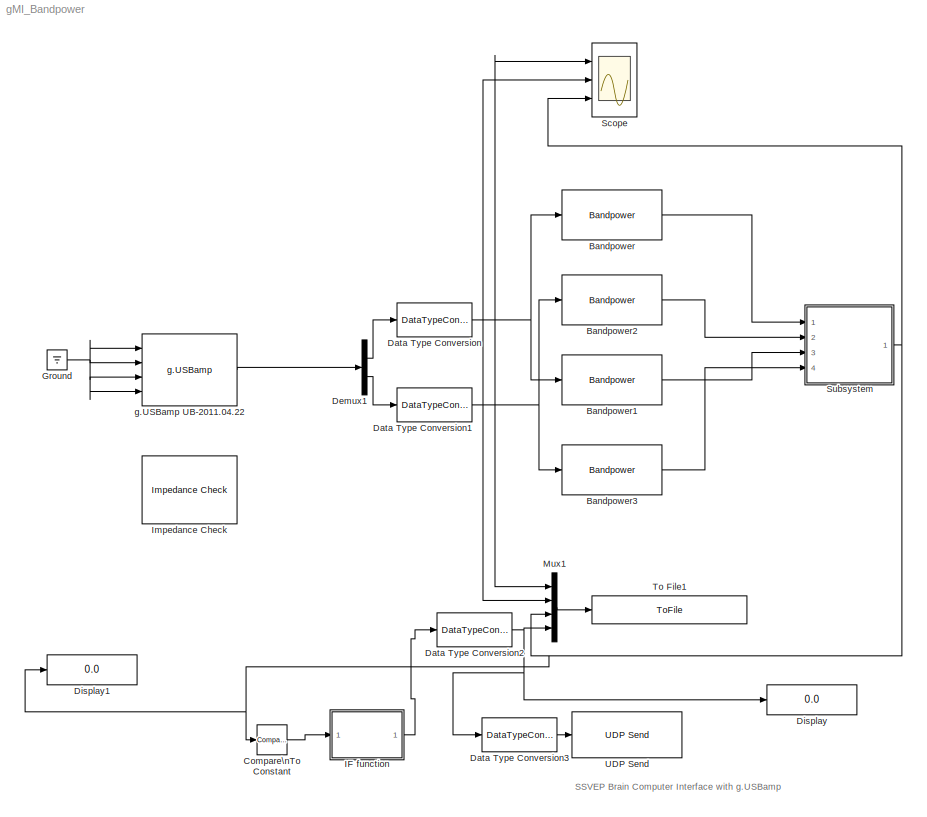
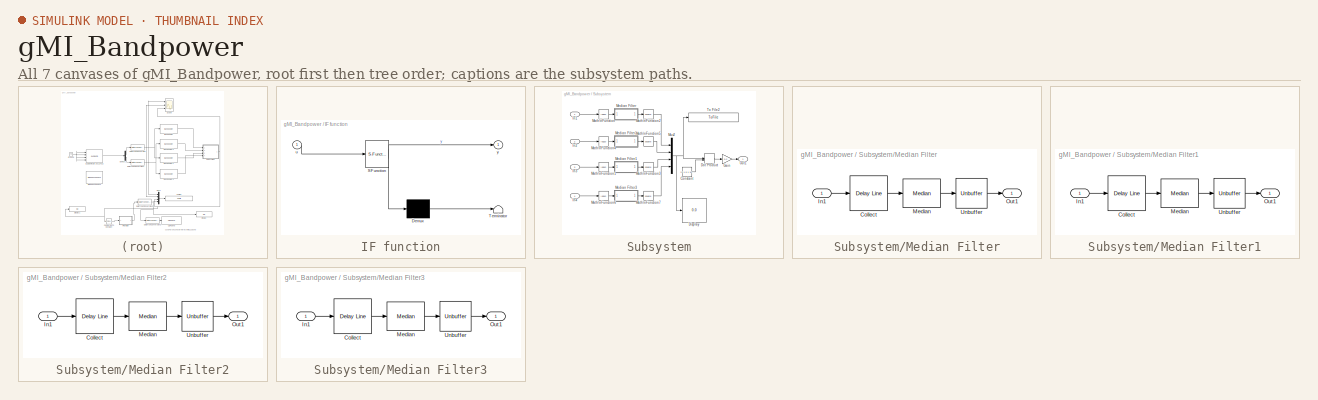
[diagram: thumbnail index - all 7 canvases of the model, root first then tree order]
MODEL gMI_Bandpower
KIND model
BLOCK [Reference] Bandpower  REF=gRTanalyze/Bandpower
  LowerFreq = 8
  Order = 5
  Ports = [1, 1]
  SID = 90
  SourceBlock = gRTanalyze/Bandpower
  SourceType = Parameter Extraction: Bandpower
  UpperFreq = 12
  WindowLength = 128
BLOCK [Reference] Bandpower1  REF=gRTanalyze/Bandpower
  LowerFreq = 12
  Order = 5
  Ports = [1, 1]
  SID = 91
  SourceBlock = gRTanalyze/Bandpower
  SourceType = Parameter Extraction: Bandpower
  UpperFreq = 30
  WindowLength = 128
BLOCK [Reference] Bandpower2  REF=gRTanalyze/Bandpower
  LowerFreq = 8
  Order = 5
  Ports = [1, 1]
  SID = 114
  SourceBlock = gRTanalyze/Bandpower
  SourceType = Parameter Extraction: Bandpower
  UpperFreq = 12
  WindowLength = 128
BLOCK [Reference] Bandpower3  REF=gRTanalyze/Bandpower
  LowerFreq = 12
  Order = 5
  Ports = [1, 1]
  SID = 115
  SourceBlock = gRTanalyze/Bandpower
  SourceType = Parameter Extraction: Bandpower
  UpperFreq = 30
  WindowLength = 128
BLOCK [Reference] Compare\nTo Constant  REF=simulink/Logic and Bit\nOperations/Compare\nTo Constant
  OutDataTypeStr = boolean
  Ports = [1, 1]
  SID = 102
  SourceBlock = simulink/Logic and Bit\nOperations/Compare\nTo Constant
  SourceType = Compare To Constant
  ZeroCross = on
  const = 100
  relop = >=
BLOCK [DataTypeConversion] Data Type Conversion
  OutDataTypeStr = double
  RndMeth = Floor
  SID = 88
  SaturateOnIntegerOverflow = off
BLOCK [DataTypeConversion] Data Type Conversion1
  OutDataTypeStr = double
  RndMeth = Floor
  SID = 89
  SaturateOnIntegerOverflow = off
BLOCK [DataTypeConversion] Data Type Conversion2
  OutDataTypeStr = double
  RndMeth = Floor
  SID = 104
  SaturateOnIntegerOverflow = off
BLOCK [DataTypeConversion] Data Type Conversion3
  OutDataTypeStr = uint8
  RndMeth = Floor
  SID = 143
  SaturateOnIntegerOverflow = off
BLOCK [Demux] Demux1
  DisplayOption = bar
  Outputs = 2
  Ports = [1, 2]
  SID = 86
BLOCK [Display] Display
  Decimation = 1
  Ports = [1]
  SID = 148
BLOCK [Display] Display1
  Decimation = 1
  Ports = [1]
  SID = 149
BLOCK [Ground] Ground
  SID = 84
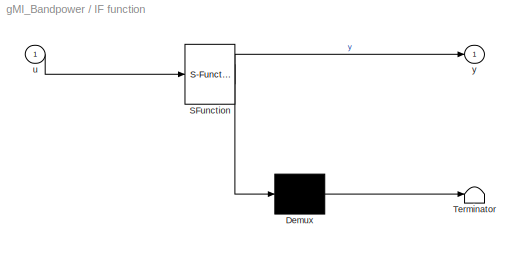
BLOCK [SubSystem] IF function
  ErrorFcn = Stateflow.Translate.translate
  PermitHierarchicalResolution = ExplicitOnly
  Ports = [1, 1]
  RequestExecContextInheritance = off
  SFBlockType = MATLAB Function
  SID = 147
  TreatAsAtomicUnit = on
  Variant = off
BLOCK [Demux] IF function/ Demux 
  Outputs = 1
  Ports = [1, 1]
  SID = 147::17
BLOCK [S-Function] IF function/ SFunction 
  EnableBusSupport = on
  FunctionName = sf_sfun
  PortCounts = [1 2]
  Ports = [1, 2]
  SFunctionDeploymentMode = off
  SID = 147::16
  Tag = Stateflow S-Function gMI_Bandpower 2
BLOCK [Terminator] IF function/ Terminator 
  SID = 147::18
BLOCK [Inport] IF function/u
  IconDisplay = Port number
  SID = 147::1
BLOCK [Outport] IF function/y
  IconDisplay = Port number
  SID = 147::5
BLOCK [Reference] Impedance Check  REF=Tools/Impedance Check
  Ports = []
  SID = 26
  SourceBlock = Tools/Impedance Check
  SourceType = g.USBamp Impedance Check
BLOCK [Mux] Mux1
  DisplayOption = bar
  Ports = [4, 1]
  SID = 108
BLOCK [Scope] Scope
  NumInputPorts = 3
  Ports = [3]
  SID = 42
  ScopeSpecificationString = Simulink.scopes.TimeScopeBlockCfg('CurrentConfiguration', extmgr.ConfigurationSet(extmgr.Configuration('Core','General UI',true),extmgr.Configuration('Core','Source UI',true),extmgr.Configuration('Sources','WiredSimulink',true,'DataLoggingLimitDataPoints',true,'DataLoggingSaveFormat','Array','DataLoggingDecimation','1','DataLoggingDecimateData',true),extmgr.Configuration('Visuals','Time Domain',tr...<+1503ch>
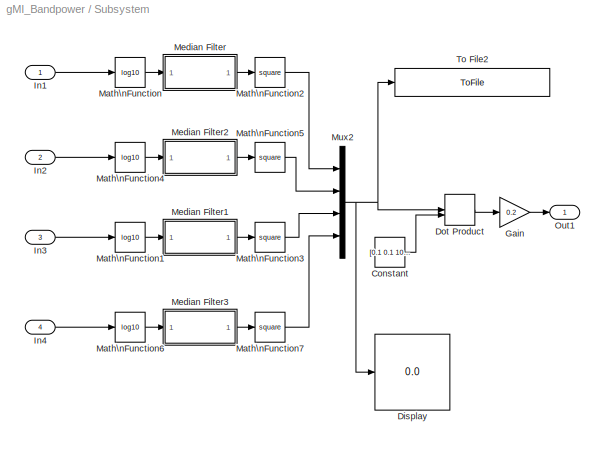
BLOCK [SubSystem] Subsystem
  Ports = [4, 1]
  RequestExecContextInheritance = off
  SID = 137
  Variant = off
BLOCK [Constant] Subsystem/Constant
  SID = 134
  Value = [0.1 0.1 100 100]
BLOCK [Display] Subsystem/Display
  Decimation = 1
  Ports = [1]
  SID = 23
BLOCK [DotProduct] Subsystem/Dot Product
  OutDataTypeStr = Inherit: Inherit via internal rule
  SID = 133
BLOCK [Gain] Subsystem/Gain
  Gain = 0.2
  OutDataTypeStr = Inherit: Inherit via internal rule
  ParamDataTypeStr = Inherit: Inherit via internal rule
  SID = 136
  SaturateOnIntegerOverflow = off
BLOCK [Inport] Subsystem/In1
  IconDisplay = Port number
  SID = 138
BLOCK [Inport] Subsystem/In2
  IconDisplay = Port number
  Port = 2
  SID = 139
BLOCK [Inport] Subsystem/In3
  IconDisplay = Port number
  Port = 3
  SID = 140
BLOCK [Inport] Subsystem/In4
  IconDisplay = Port number
  Port = 4
  SID = 141
BLOCK [Math] Subsystem/Math\nFunction
  Operator = log10
  Ports = [1, 1]
  SID = 98
BLOCK [Math] Subsystem/Math\nFunction1
  Operator = log10
  Ports = [1, 1]
  SID = 99
BLOCK [Math] Subsystem/Math\nFunction2
  Operator = square
  Ports = [1, 1]
  SID = 100
BLOCK [Math] Subsystem/Math\nFunction3
  Operator = square
  Ports = [1, 1]
  SID = 101
BLOCK [Math] Subsystem/Math\nFunction4
  Operator = log10
  Ports = [1, 1]
  SID = 116
BLOCK [Math] Subsystem/Math\nFunction5
  Operator = square
  Ports = [1, 1]
  SID = 117
BLOCK [Math] Subsystem/Math\nFunction6
  Operator = log10
  Ports = [1, 1]
  SID = 124
BLOCK [Math] Subsystem/Math\nFunction7
  Operator = square
  Ports = [1, 1]
  SID = 125
BLOCK [SubSystem] Subsystem/Median Filter
  Ports = [1, 1]
  RequestExecContextInheritance = off
  SID = 55
  Variant = off
BLOCK [Reference] Subsystem/Median Filter/Collect  REF=dspbuff3/Delay Line
  OutputFrames = on
  Ports = [1, 1]
  SID = 57
  SourceBlock = dspbuff3/Delay Line
  SourceType = Delay Line
  TreatMby1Signals = M channels (this choice will be removed - see release notes)
  UserData = DataTag0
  UserDataPersistent = on
  directfeed = on
  enable_output = off
  hold_output = off
  ic = 0
  siz = 50
BLOCK [Inport] Subsystem/Median Filter/In1
  IconDisplay = Port number
  SID = 56
BLOCK [Reference] Subsystem/Median Filter/Median  REF=dspstat3/Median
  LockScale = off
  Ports = [1, 1]
  SID = 58
  SourceBlock = dspstat3/Median
  SourceType = Median
  accumDataTypeStr = Inherit: Same as product output
  accumFracLength = 30
  accumLastDataTypeStr = Inherit: Same as product output
  accumMode = Same as product output
  accumWordLength = 32
  additionalParams = off
  allowOverrides = off
  dimension = 1
  directionMode = Specified dimension
  outputDataTypeStr = Inherit: Same as accumulator
  outputFracLength = 15
  outputLastDataTypeStr = Inherit: Same as accumulator
  outputMax = []
  outputMin = []
  outputMode = Same as accumulator
  outputWordLength = 16
  overflowMode = off
  prodOutputDataTypeStr = Inherit: Same as input
  prodOutputFracLength = 30
  prodOutputLastDataTypeStr = Inherit: Same as input
  prodOutputMode = Same as input
  prodOutputWordLength = 32
  roundingMode = Floor
  sortAlg = Quick sort
BLOCK [Outport] Subsystem/Median Filter/Out1
  IconDisplay = Port number
  SID = 60
BLOCK [Unbuffer] Subsystem/Median Filter/Unbuffer
  Ports = [1, 1]
  SID = 64
BLOCK [SubSystem] Subsystem/Median Filter1
  Ports = [1, 1]
  RequestExecContextInheritance = off
  SID = 92
  Variant = off
BLOCK [Reference] Subsystem/Median Filter1/Collect  REF=dspbuff3/Delay Line
  OutputFrames = on
  Ports = [1, 1]
  SID = 94
  SourceBlock = dspbuff3/Delay Line
  SourceType = Delay Line
  TreatMby1Signals = M channels (this choice will be removed - see release notes)
  UserData = DataTag1
  UserDataPersistent = on
  directfeed = on
  enable_output = off
  hold_output = off
  ic = 0
  siz = 50
BLOCK [Inport] Subsystem/Median Filter1/In1
  IconDisplay = Port number
  SID = 93
BLOCK [Reference] Subsystem/Median Filter1/Median  REF=dspstat3/Median
  LockScale = off
  Ports = [1, 1]
  SID = 95
  SourceBlock = dspstat3/Median
  SourceType = Median
  accumDataTypeStr = Inherit: Same as product output
  accumFracLength = 30
  accumLastDataTypeStr = Inherit: Same as product output
  accumMode = Same as product output
  accumWordLength = 32
  additionalParams = off
  allowOverrides = off
  dimension = 1
  directionMode = Specified dimension
  outputDataTypeStr = Inherit: Same as accumulator
  outputFracLength = 15
  outputLastDataTypeStr = Inherit: Same as accumulator
  outputMax = []
  outputMin = []
  outputMode = Same as accumulator
  outputWordLength = 16
  overflowMode = off
  prodOutputDataTypeStr = Inherit: Same as input
  prodOutputFracLength = 30
  prodOutputLastDataTypeStr = Inherit: Same as input
  prodOutputMode = Same as input
  prodOutputWordLength = 32
  roundingMode = Floor
  sortAlg = Quick sort
BLOCK [Outport] Subsystem/Median Filter1/Out1
  IconDisplay = Port number
  SID = 97
BLOCK [Unbuffer] Subsystem/Median Filter1/Unbuffer
  Ports = [1, 1]
  SID = 96
BLOCK [SubSystem] Subsystem/Median Filter2
  Ports = [1, 1]
  RequestExecContextInheritance = off
  SID = 118
  Variant = off
BLOCK [Reference] Subsystem/Median Filter2/Collect  REF=dspbuff3/Delay Line
  OutputFrames = on
  Ports = [1, 1]
  SID = 120
  SourceBlock = dspbuff3/Delay Line
  SourceType = Delay Line
  TreatMby1Signals = M channels (this choice will be removed - see release notes)
  UserData = DataTag2
  UserDataPersistent = on
  directfeed = on
  enable_output = off
  hold_output = off
  ic = 0
  siz = 50
BLOCK [Inport] Subsystem/Median Filter2/In1
  IconDisplay = Port number
  SID = 119
BLOCK [Reference] Subsystem/Median Filter2/Median  REF=dspstat3/Median
  LockScale = off
  Ports = [1, 1]
  SID = 121
  SourceBlock = dspstat3/Median
  SourceType = Median
  accumDataTypeStr = Inherit: Same as product output
  accumFracLength = 30
  accumLastDataTypeStr = Inherit: Same as product output
  accumMode = Same as product output
  accumWordLength = 32
  additionalParams = off
  allowOverrides = off
  dimension = 1
  directionMode = Specified dimension
  outputDataTypeStr = Inherit: Same as accumulator
  outputFracLength = 15
  outputLastDataTypeStr = Inherit: Same as accumulator
  outputMax = []
  outputMin = []
  outputMode = Same as accumulator
  outputWordLength = 16
  overflowMode = off
  prodOutputDataTypeStr = Inherit: Same as input
  prodOutputFracLength = 30
  prodOutputLastDataTypeStr = Inherit: Same as input
  prodOutputMode = Same as input
  prodOutputWordLength = 32
  roundingMode = Floor
  sortAlg = Quick sort
BLOCK [Outport] Subsystem/Median Filter2/Out1
  IconDisplay = Port number
  SID = 123
BLOCK [Unbuffer] Subsystem/Median Filter2/Unbuffer
  Ports = [1, 1]
  SID = 122
BLOCK [SubSystem] Subsystem/Median Filter3
  Ports = [1, 1]
  RequestExecContextInheritance = off
  SID = 126
  Variant = off
BLOCK [Reference] Subsystem/Median Filter3/Collect  REF=dspbuff3/Delay Line
  OutputFrames = on
  Ports = [1, 1]
  SID = 128
  SourceBlock = dspbuff3/Delay Line
  SourceType = Delay Line
  TreatMby1Signals = M channels (this choice will be removed - see release notes)
  UserData = DataTag3
  UserDataPersistent = on
  directfeed = on
  enable_output = off
  hold_output = off
  ic = 0
  siz = 50
BLOCK [Inport] Subsystem/Median Filter3/In1
  IconDisplay = Port number
  SID = 127
BLOCK [Reference] Subsystem/Median Filter3/Median  REF=dspstat3/Median
  LockScale = off
  Ports = [1, 1]
  SID = 129
  SourceBlock = dspstat3/Median
  SourceType = Median
  accumDataTypeStr = Inherit: Same as product output
  accumFracLength = 30
  accumLastDataTypeStr = Inherit: Same as product output
  accumMode = Same as product output
  accumWordLength = 32
  additionalParams = off
  allowOverrides = off
  dimension = 1
  directionMode = Specified dimension
  outputDataTypeStr = Inherit: Same as accumulator
  outputFracLength = 15
  outputLastDataTypeStr = Inherit: Same as accumulator
  outputMax = []
  outputMin = []
  outputMode = Same as accumulator
  outputWordLength = 16
  overflowMode = off
  prodOutputDataTypeStr = Inherit: Same as input
  prodOutputFracLength = 30
  prodOutputLastDataTypeStr = Inherit: Same as input
  prodOutputMode = Same as input
  prodOutputWordLength = 32
  roundingMode = Floor
  sortAlg = Quick sort
BLOCK [Outport] Subsystem/Median Filter3/Out1
  IconDisplay = Port number
  SID = 131
BLOCK [Unbuffer] Subsystem/Median Filter3/Unbuffer
  Ports = [1, 1]
  SID = 130
BLOCK [Mux] Subsystem/Mux2
  DisplayOption = bar
  Ports = [4, 1]
  SID = 132
BLOCK [Outport] Subsystem/Out1
  IconDisplay = Port number
  SID = 142
BLOCK [ToFile] Subsystem/To File2
  Filename = MI_bandpower.mat
  MatrixName = y
  Ports = [1]
  SID = 135
BLOCK [ToFile] To File1
  Filename = MI_bandpower2.mat
  MatrixName = y
  Ports = [1]
  SID = 107
BLOCK [Reference] UDP Send  REF=instrumentlib/UDP Send
  ByteOrder = BigEndian
  EnableBlockingMode = on
  Host = 172.22.11.2
  LocalPort = -1
  Port = 1111
  Ports = [1]
  SID = 144
  SourceBlock = instrumentlib/UDP Send
  SourceType = UDP Send
BLOCK [Reference] g.USBamp UB-2011.04.22  REF=gUSBamplib/g.USBamp
  Ports = [4, 1]
  SID = 109
  SourceBlock = gUSBamplib/g.USBamp
  SourceType = g.USBamp
  cfg = currentCFG_gMI_Bandpower_UB-2011.04.22.cfg
  snr = UB-2011.04.22
ANNOTATION (root): SSVEP Brain Computer Interface with g.USBamp
LINE Bandpower1:1 -> Subsystem:3
LINE Bandpower2:1 -> Subsystem:2
LINE Bandpower3:1 -> Subsystem:4
LINE Bandpower:1 -> Subsystem:1
LINE Compare\nTo Constant:1 -> IF function:1
NET Data Type Conversion1:1 -> Bandpower2:1, Bandpower3:1, Mux1:2, Scope:2
NET Data Type Conversion2:1 -> Data Type Conversion3:1, Display:1, Mux1:4
LINE Data Type Conversion3:1 -> UDP Send:1
NET Data Type Conversion:1 -> Bandpower1:1, Bandpower:1, Mux1:1, Scope:1
LINE Demux1:1 -> Data Type Conversion:1
LINE Demux1:2 -> Data Type Conversion1:1
NET Ground:1 -> g.USBamp UB-2011.04.22:1, g.USBamp UB-2011.04.22:2, g.USBamp UB-2011.04.22:3, g.USBamp UB-2011.04.22:4
LINE IF function/ Demux :1 -> IF function/ Terminator :1
LINE IF function/ SFunction :1 -> IF function/ Demux :1
LINE IF function/ SFunction :2 -> IF function/y:1
LINE IF function/u:1 -> IF function/ SFunction :1
LINE IF function:1 -> Data Type Conversion2:1
LINE Mux1:1 -> To File1:1
LINE Subsystem/Constant:1 -> Subsystem/Dot Product:2
LINE Subsystem/Dot Product:1 -> Subsystem/Gain:1
LINE Subsystem/Gain:1 -> Subsystem/Out1:1
LINE Subsystem/In1:1 -> Subsystem/Math\nFunction:1
LINE Subsystem/In2:1 -> Subsystem/Math\nFunction4:1
LINE Subsystem/In3:1 -> Subsystem/Math\nFunction1:1
LINE Subsystem/In4:1 -> Subsystem/Math\nFunction6:1
LINE Subsystem/Math\nFunction1:1 -> Subsystem/Median Filter1:1
LINE Subsystem/Math\nFunction2:1 -> Subsystem/Mux2:1
LINE Subsystem/Math\nFunction3:1 -> Subsystem/Mux2:3
LINE Subsystem/Math\nFunction4:1 -> Subsystem/Median Filter2:1
LINE Subsystem/Math\nFunction5:1 -> Subsystem/Mux2:2
LINE Subsystem/Math\nFunction6:1 -> Subsystem/Median Filter3:1
LINE Subsystem/Math\nFunction7:1 -> Subsystem/Mux2:4
LINE Subsystem/Math\nFunction:1 -> Subsystem/Median Filter:1
LINE Subsystem/Median Filter/Collect:1 -> Subsystem/Median Filter/Median:1
LINE Subsystem/Median Filter/In1:1 -> Subsystem/Median Filter/Collect:1
LINE Subsystem/Median Filter/Median:1 -> Subsystem/Median Filter/Unbuffer:1
LINE Subsystem/Median Filter/Unbuffer:1 -> Subsystem/Median Filter/Out1:1
LINE Subsystem/Median Filter1/Collect:1 -> Subsystem/Median Filter1/Median:1
LINE Subsystem/Median Filter1/In1:1 -> Subsystem/Median Filter1/Collect:1
LINE Subsystem/Median Filter1/Median:1 -> Subsystem/Median Filter1/Unbuffer:1
LINE Subsystem/Median Filter1/Unbuffer:1 -> Subsystem/Median Filter1/Out1:1
LINE Subsystem/Median Filter1:1 -> Subsystem/Math\nFunction3:1
LINE Subsystem/Median Filter2/Collect:1 -> Subsystem/Median Filter2/Median:1
LINE Subsystem/Median Filter2/In1:1 -> Subsystem/Median Filter2/Collect:1
LINE Subsystem/Median Filter2/Median:1 -> Subsystem/Median Filter2/Unbuffer:1
LINE Subsystem/Median Filter2/Unbuffer:1 -> Subsystem/Median Filter2/Out1:1
LINE Subsystem/Median Filter2:1 -> Subsystem/Math\nFunction5:1
LINE Subsystem/Median Filter3/Collect:1 -> Subsystem/Median Filter3/Median:1
LINE Subsystem/Median Filter3/In1:1 -> Subsystem/Median Filter3/Collect:1
LINE Subsystem/Median Filter3/Median:1 -> Subsystem/Median Filter3/Unbuffer:1
LINE Subsystem/Median Filter3/Unbuffer:1 -> Subsystem/Median Filter3/Out1:1
LINE Subsystem/Median Filter3:1 -> Subsystem/Math\nFunction7:1
LINE Subsystem/Median Filter:1 -> Subsystem/Math\nFunction2:1
NET Subsystem/Mux2:1 -> Subsystem/Display:1, Subsystem/Dot Product:1, Subsystem/To File2:1
NET Subsystem:1 -> Compare\nTo Constant:1, Display1:1, Mux1:3, Scope:3
LINE g.USBamp UB-2011.04.22:1 -> Demux1:1
note: NET lines group one-source signal fan-out (src -> all destinations, sorted); 1:1 wires keep LINE
CHART IF function states=1 transitions=1
  STATE_LABEL 'eML_blk_kernel()'
